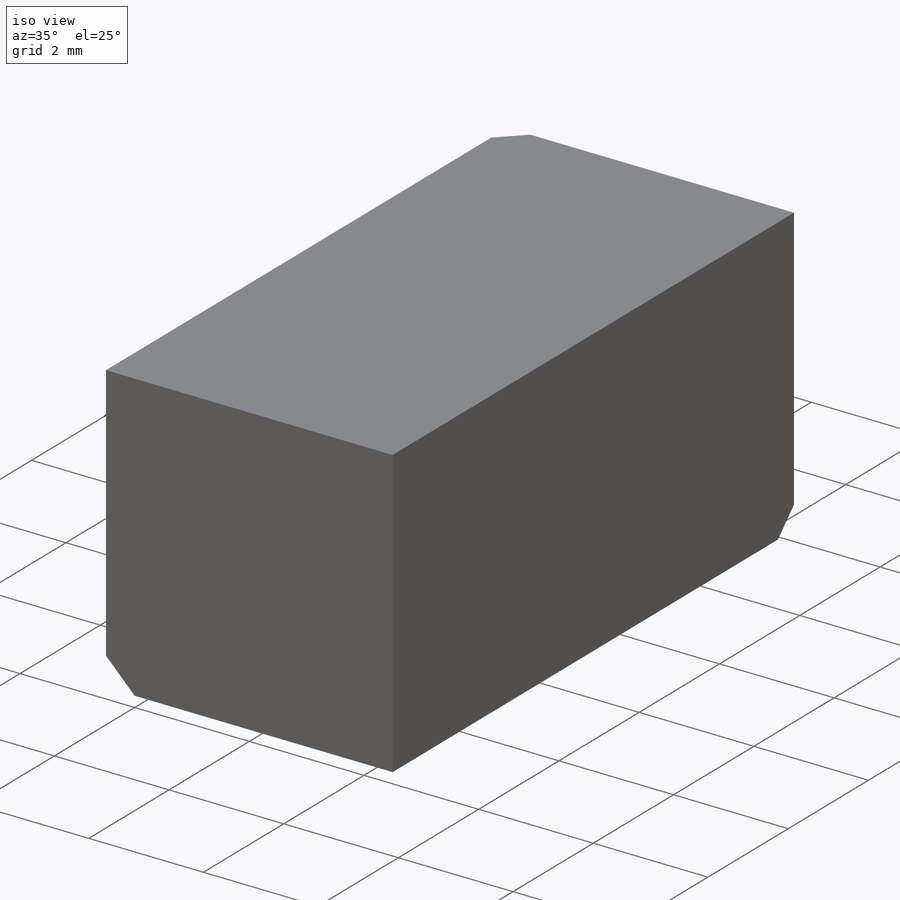
[diagram: iso view]
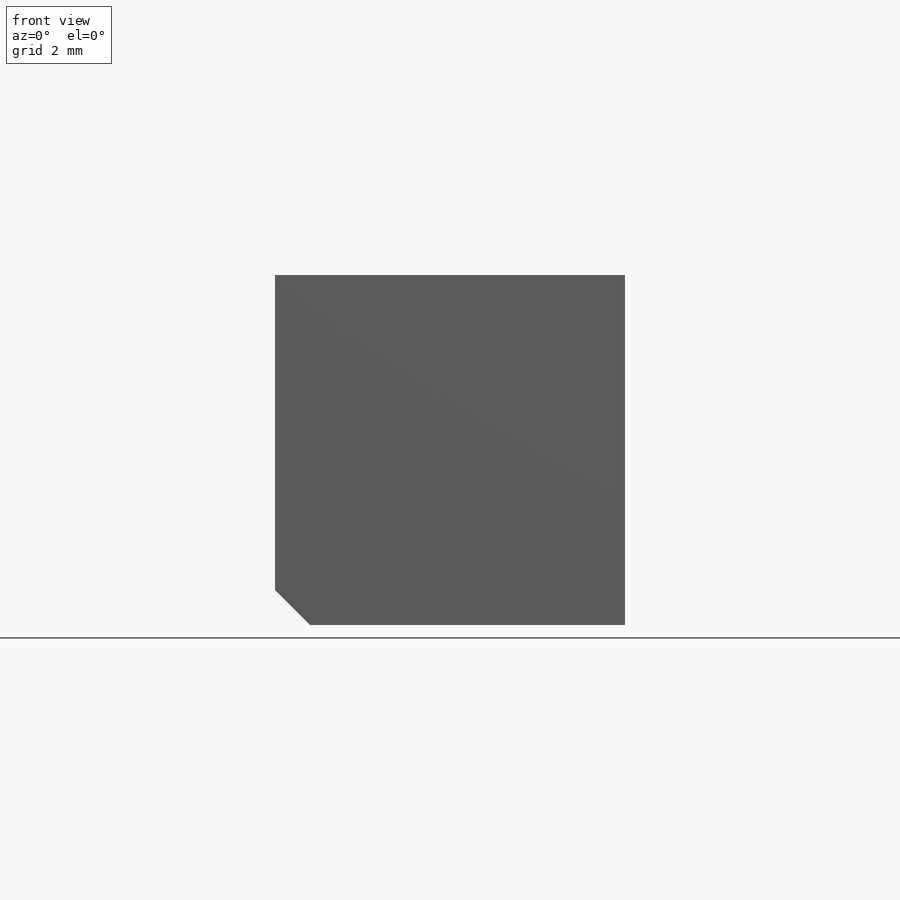
[diagram: front view]
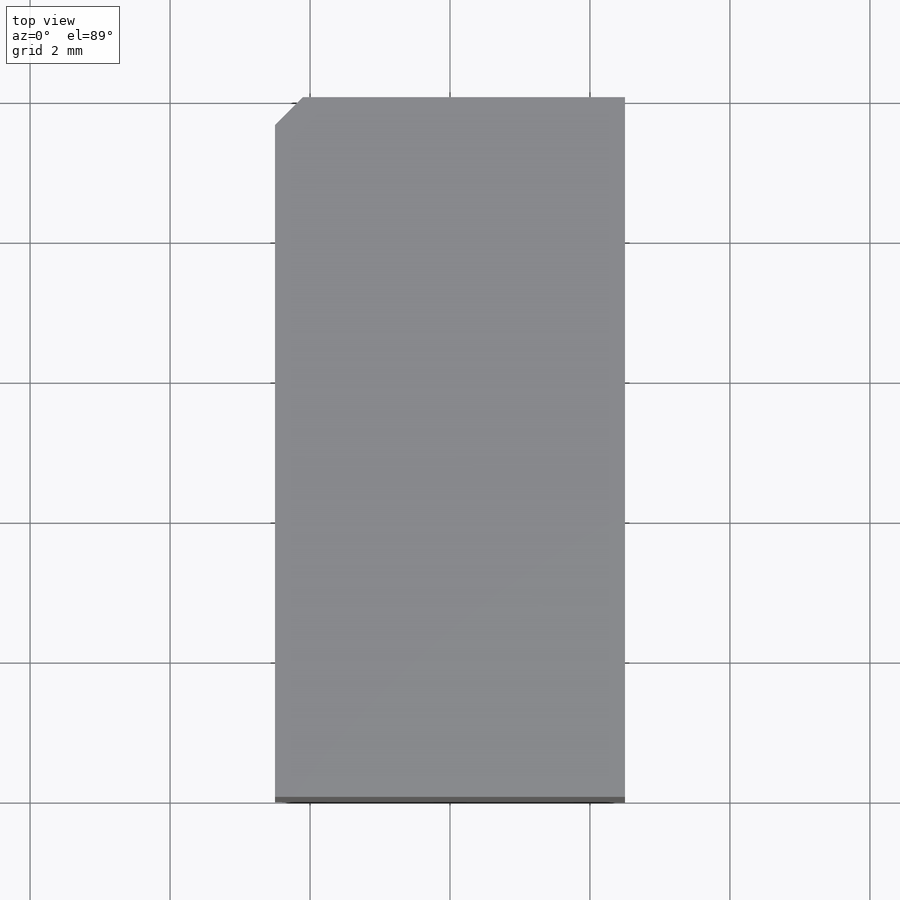
[diagram: top view]
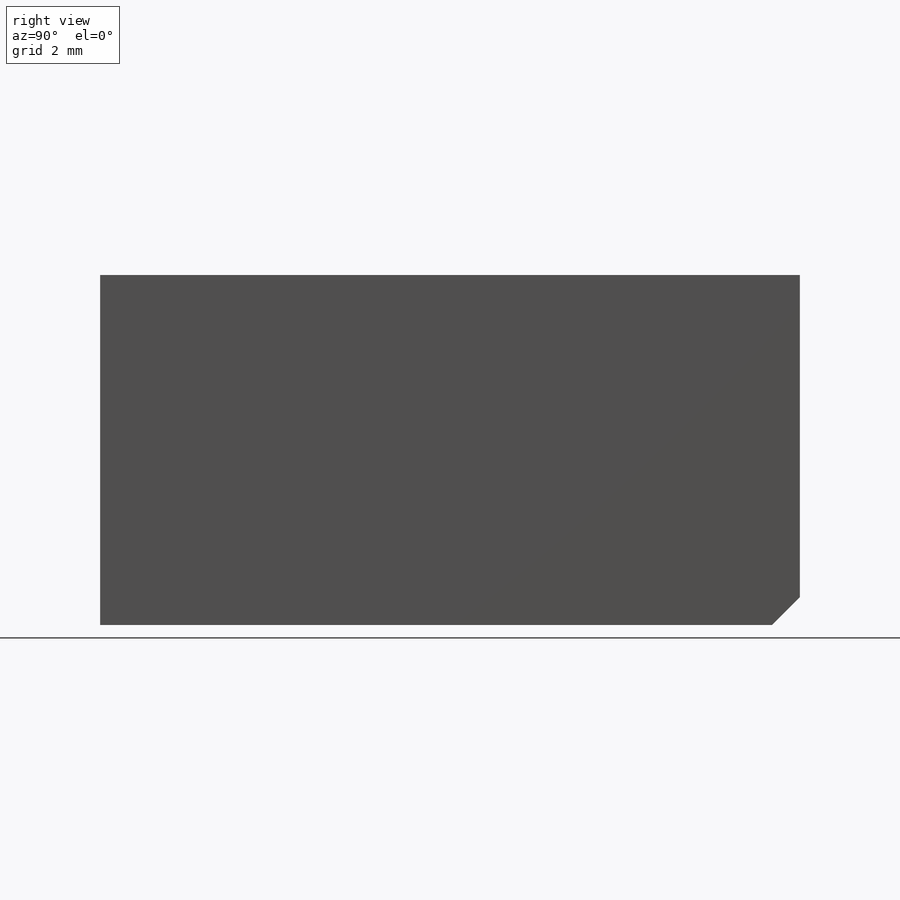
[diagram: right view]
SOLIDWORKS PART (.sldprt)
format: sldprt  version: not decoded by parser v0  size: 300,544 bytes
history: native  units: mm
features: sketch x4, chamfer x4, cut_extrude x3, material x1, extrude x1 (+13 scaffold rows collapsed)
feature tree (26):
  scaffold x13  (default folders/planes/origin — collapsed)
  material  "Material <not specified>"
  sketch  "Sketch1"  dims[D1=5.0mm D2=5.0mm]
  extrude  "Boss-Extrude1"  Depth=10mm
  sketch  "Sketch3"  dims[D1=3.2mm D2=2.5mm D3=2.5mm]
  cut_extrude  "Cut-Extrude2"  Depth=4.5mm
  sketch  "Sketch4"  dims[D1=3.2mm D2=2.5mm D3=2.5mm D4=4.0mm]
  cut_extrude  "Cut-Extrude3"  Depth=4.5mm
  sketch  "Sketch5"  dims[D2=3.2mm D1=2.5mm]
  cut_extrude  "Cut-Extrude4"  Depth=4.5mm
  chamfer  "Chamfer1"  Distance=0.5mm Angle=45deg
  chamfer  "Chamfer2"  Distance=0.5mm Angle=45deg
  chamfer  "Chamfer3"  Distance=0.4mm Angle=45deg
  chamfer  "Chamfer4"  Distance=0.4mm Angle=45deg
decode coverage: 12 of 12 modeling features carry decoded parameters
note: suppression state not decoded; provenance and decode notes live in map.json
